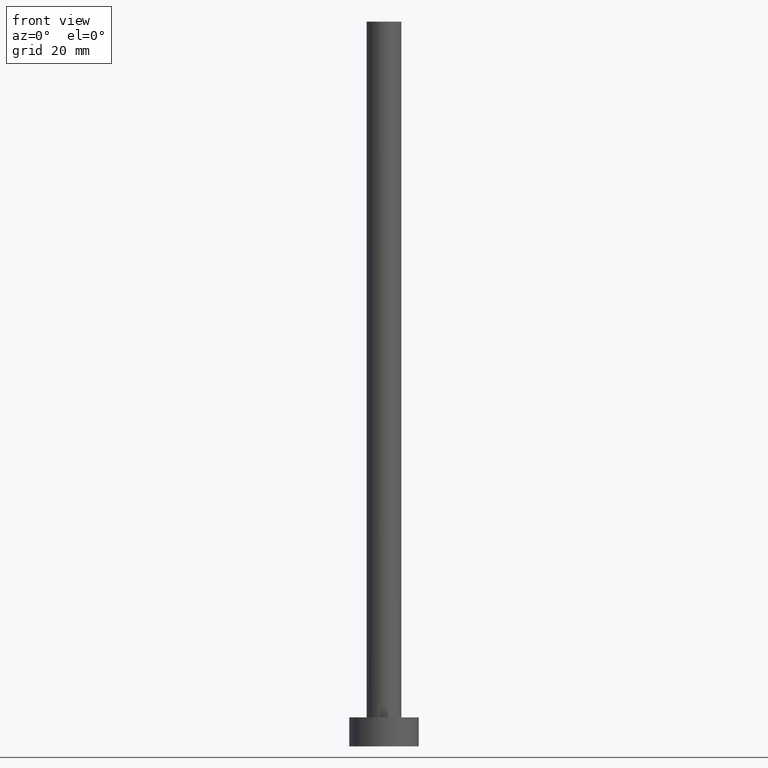
[diagram: clean part render]
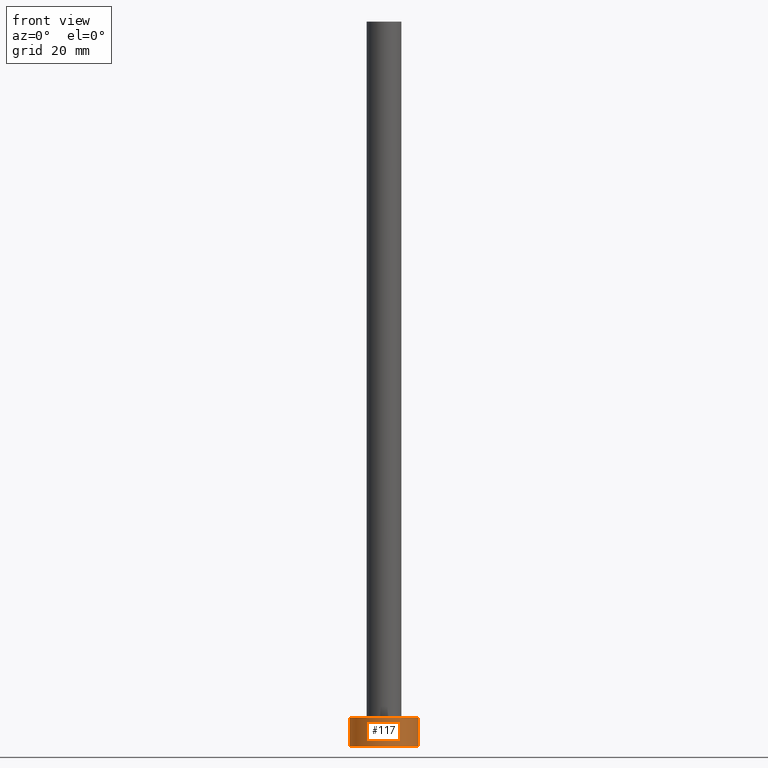
[diagram: same view with one face highlighted and labeled with its STEP entity id]
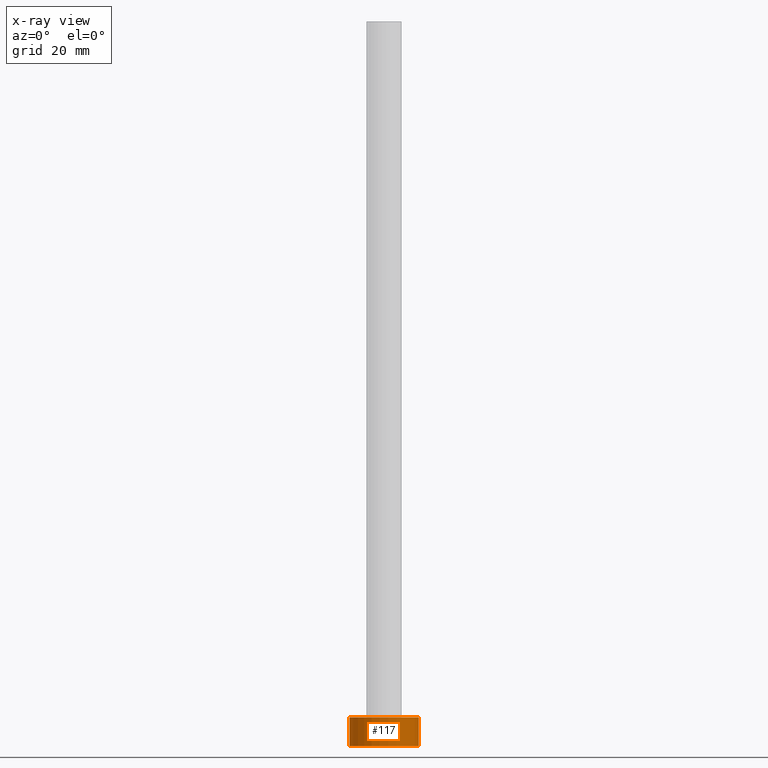
[diagram: x-ray of the same camera — body ghosted, the highlighted face saturated]
A machine part, front view. The second image highlights one B-rep face of the part: STEP entity #117.
The next image is the same camera in x-ray: the body ghosted, the highlighted face saturated — about 0% of this face is hidden behind the body in this view.
In plain terms, the highlighted cylindrical surface (edge-blend (fillet) strip) has radius 6 mm, axis along (-0, -0, -1).
Its self-contained STEP definition (entity closure, byte-faithful):
#13 = VERTEX_POINT ( 'NONE', #75 ) ;
#16 = VERTEX_POINT ( 'NONE', #204 ) ;
#19 = EDGE_LOOP ( 'NONE', ( #51, #208, #71, #73 ) ) ;
#22 = AXIS2_PLACEMENT_3D ( 'NONE', #244, #196, #135 ) ;
#24 = LINE ( 'NONE', #66, #37 ) ;
#27 = CARTESIAN_POINT ( 'NONE',  ( 0.000000000000000000, 0.000000000000000000, 0.000000000000000000 ) ) ;
#31 = CIRCLE ( 'NONE', #225, 6.000000000000000888 ) ;
#37 = VECTOR ( 'NONE', #174, 1000.000000000000000 ) ;
#39 = CARTESIAN_POINT ( 'NONE',  ( 0.000000000000000000, 0.000000000000000000, 5.000000000000000000 ) ) ;
#40 = DIRECTION ( 'NONE',  ( -0.000000000000000000, -0.000000000000000000, -1.000000000000000000 ) ) ;
#43 = AXIS2_PLACEMENT_3D ( 'NONE', #39, #40, #192 ) ;
#51 = ORIENTED_EDGE ( 'NONE', *, *, #202, .F. ) ;
#62 = FACE_OUTER_BOUND ( 'NONE', #19, .T. ) ;
#66 = CARTESIAN_POINT ( 'NONE',  ( -6.000000000000000888, 0.000000000000000000, 5.000000000000000000 ) ) ;
#71 = ORIENTED_EDGE ( 'NONE', *, *, #170, .T. ) ;
#73 = ORIENTED_EDGE ( 'NONE', *, *, #199, .T. ) ;
#75 = CARTESIAN_POINT ( 'NONE',  ( 6.000000000000000888, 7.347880794884120722E-16, 5.000000000000000000 ) ) ;
#98 = DIRECTION ( 'NONE',  ( 0.000000000000000000, 0.000000000000000000, 1.000000000000000000 ) ) ;
#117 = ADVANCED_FACE ( 'NONE', ( #62 ), #215, .T. ) ;
#122 = CIRCLE ( 'NONE', #22, 6.000000000000000888 ) ;
#125 = VERTEX_POINT ( 'NONE', #195 ) ;
#126 = VECTOR ( 'NONE', #220, 1000.000000000000000 ) ;
#135 = DIRECTION ( 'NONE',  ( 1.000000000000000000, 0.000000000000000000, 0.000000000000000000 ) ) ;
#139 = DIRECTION ( 'NONE',  ( 1.000000000000000000, 0.000000000000000000, 0.000000000000000000 ) ) ;
#160 = LINE ( 'NONE', #242, #126 ) ;
#165 = EDGE_CURVE ( 'NONE', #16, #13, #122, .T. ) ;
#170 = EDGE_CURVE ( 'NONE', #16, #206, #24, .T. ) ;
#173 = CARTESIAN_POINT ( 'NONE',  ( -6.000000000000000888, 0.000000000000000000, 0.000000000000000000 ) ) ;
#174 = DIRECTION ( 'NONE',  ( -0.000000000000000000, -0.000000000000000000, -1.000000000000000000 ) ) ;
#192 = DIRECTION ( 'NONE',  ( -1.000000000000000000, 0.000000000000000000, 0.000000000000000000 ) ) ;
#195 = CARTESIAN_POINT ( 'NONE',  ( 6.000000000000000888, 7.347880794884120722E-16, 0.000000000000000000 ) ) ;
#196 = DIRECTION ( 'NONE',  ( 0.000000000000000000, 0.000000000000000000, 1.000000000000000000 ) ) ;
#199 = EDGE_CURVE ( 'NONE', #206, #125, #31, .T. ) ;
#202 = EDGE_CURVE ( 'NONE', #13, #125, #160, .T. ) ;
#204 = CARTESIAN_POINT ( 'NONE',  ( -6.000000000000000888, 0.000000000000000000, 5.000000000000000000 ) ) ;
#206 = VERTEX_POINT ( 'NONE', #173 ) ;
#208 = ORIENTED_EDGE ( 'NONE', *, *, #165, .F. ) ;
#215 = CYLINDRICAL_SURFACE ( 'NONE', #43, 6.000000000000000888 ) ;
#220 = DIRECTION ( 'NONE',  ( -0.000000000000000000, -0.000000000000000000, -1.000000000000000000 ) ) ;
#225 = AXIS2_PLACEMENT_3D ( 'NONE', #27, #98, #139 ) ;
#242 = CARTESIAN_POINT ( 'NONE',  ( 6.000000000000000888, 7.347880794884120722E-16, 5.000000000000000000 ) ) ;
#244 = CARTESIAN_POINT ( 'NONE',  ( 0.000000000000000000, 0.000000000000000000, 5.000000000000000000 ) ) ;